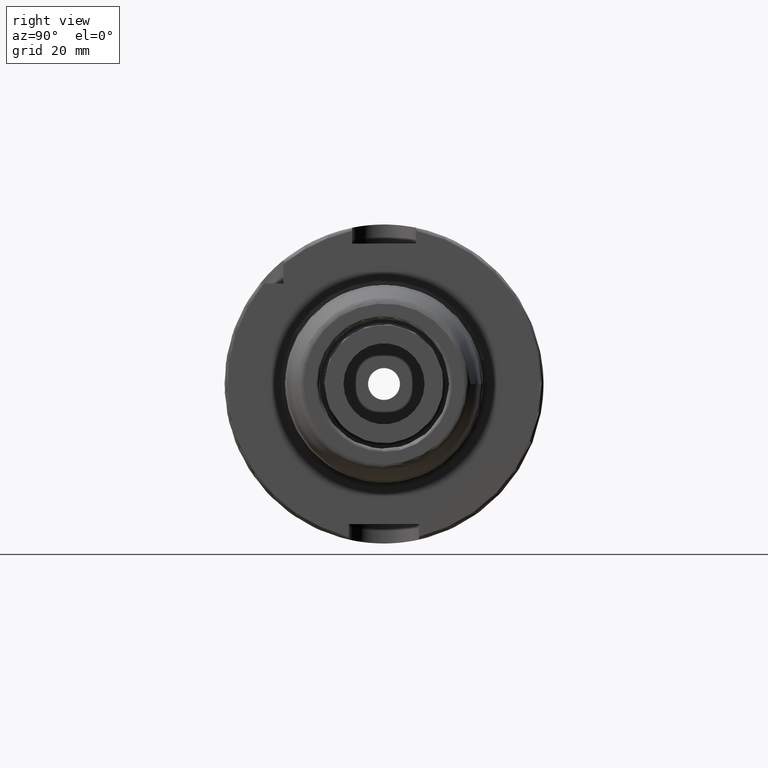
[diagram: clean part render]
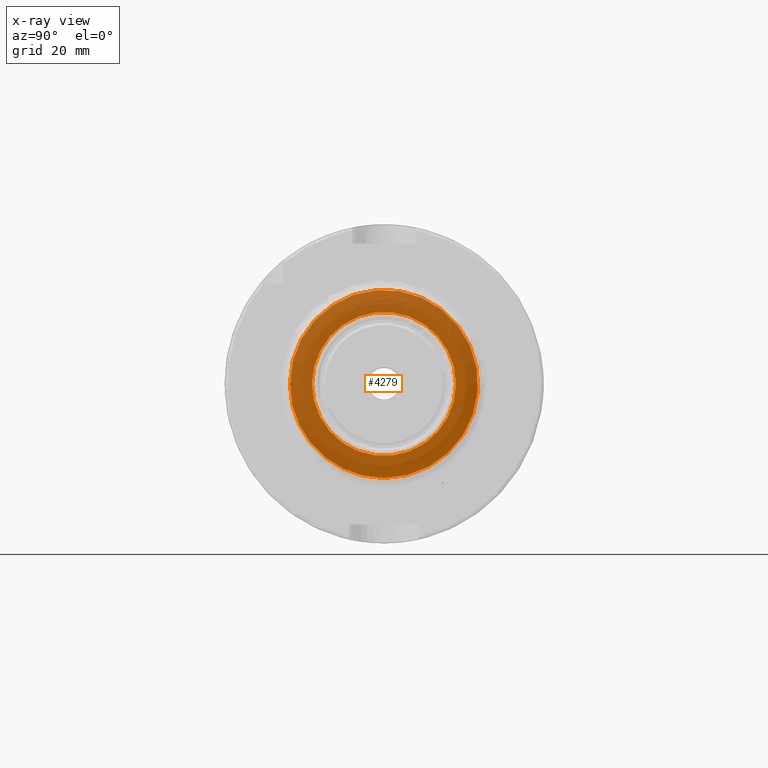
[diagram: x-ray — body ghosted, one internal face saturated and labeled with its STEP entity id]
A machine part, right view, then the same camera in x-ray: the body is ghosted and one INTERNAL B-rep face — a face not visible from any outside direction — is saturated and labeled: STEP entity #4279.
In plain terms, the highlighted planar face has unit normal (-1, 0, -0).
Its self-contained STEP definition (entity closure, byte-faithful):
#242=FACE_BOUND('',#1342,.T.);
#333=PLANE('',#4795);
#1094=FACE_OUTER_BOUND('',#1341,.T.);
#1341=EDGE_LOOP('',(#3915,#3916));
#1342=EDGE_LOOP('',(#3917));
#1583=CIRCLE('',#4792,22.55);
#1586=CIRCLE('',#4796,29.5);
#1587=CIRCLE('',#4797,29.5);
#2030=VERTEX_POINT('',#9215);
#2033=VERTEX_POINT('',#9223);
#2034=VERTEX_POINT('',#9224);
#2669=EDGE_CURVE('',#2030,#2030,#1583,.T.);
#2673=EDGE_CURVE('',#2033,#2034,#1586,.T.);
#2674=EDGE_CURVE('',#2034,#2033,#1587,.T.);
#3915=ORIENTED_EDGE('',*,*,#2673,.F.);
#3916=ORIENTED_EDGE('',*,*,#2674,.F.);
#3917=ORIENTED_EDGE('',*,*,#2669,.F.);
#4279=ADVANCED_FACE('',(#1094,#242),#333,.T.);
#4792=AXIS2_PLACEMENT_3D('',#9216,#5938,#5939);
#4795=AXIS2_PLACEMENT_3D('',#9222,#5945,#5946);
#4796=AXIS2_PLACEMENT_3D('',#9225,#5947,#5948);
#4797=AXIS2_PLACEMENT_3D('',#9226,#5949,#5950);
#5938=DIRECTION('center_axis',(-1.,0.,0.));
#5939=DIRECTION('ref_axis',(0.,-1.,0.));
#5945=DIRECTION('center_axis',(-1.,0.,0.));
#5946=DIRECTION('ref_axis',(0.,0.,1.));
#5947=DIRECTION('center_axis',(1.,0.,0.));
#5948=DIRECTION('ref_axis',(0.,-1.,1.83697019872103E-16));
#5949=DIRECTION('center_axis',(1.,0.,0.));
#5950=DIRECTION('ref_axis',(0.,-1.,1.83697019872103E-16));
#9215=CARTESIAN_POINT('',(0.,22.55,-2.76157853207728E-15));
#9216=CARTESIAN_POINT('Origin',(0.,0.,0.));
#9222=CARTESIAN_POINT('Origin',(0.,30.5,0.));
#9223=CARTESIAN_POINT('',(0.,29.5,-1.80635402874235E-15));
#9224=CARTESIAN_POINT('',(0.,-3.61270805748469E-15,29.5));
#9225=CARTESIAN_POINT('Origin',(0.,0.,0.));
#9226=CARTESIAN_POINT('Origin',(0.,0.,0.));